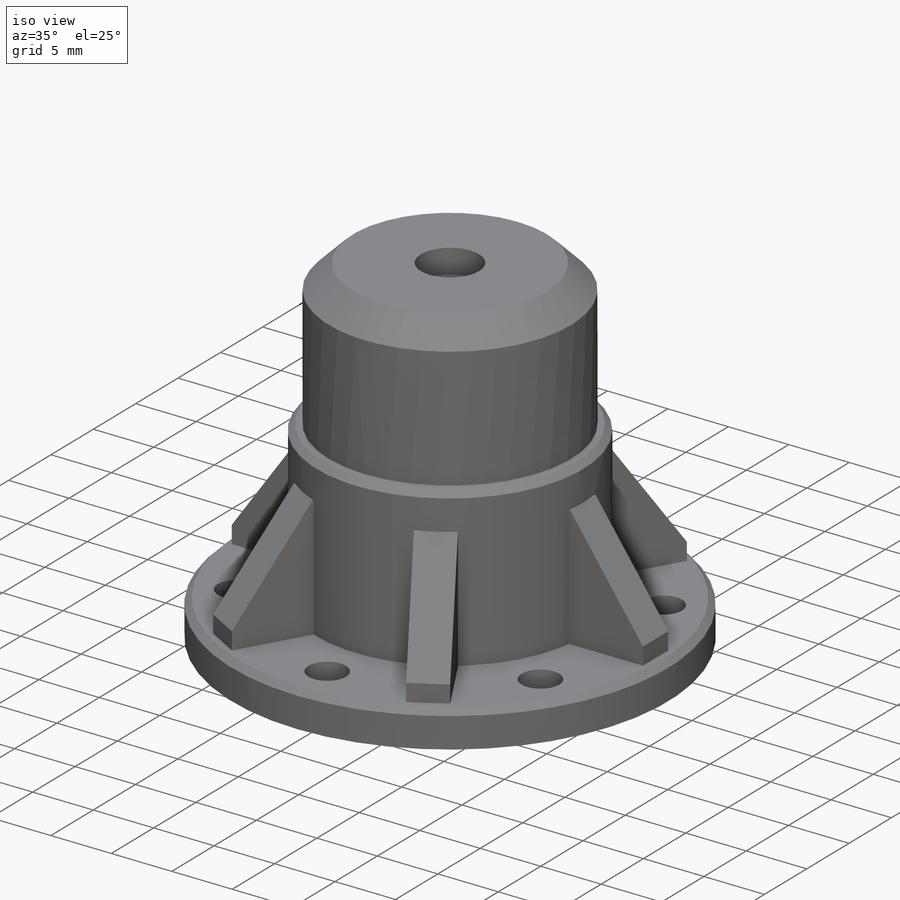
[diagram: iso view]
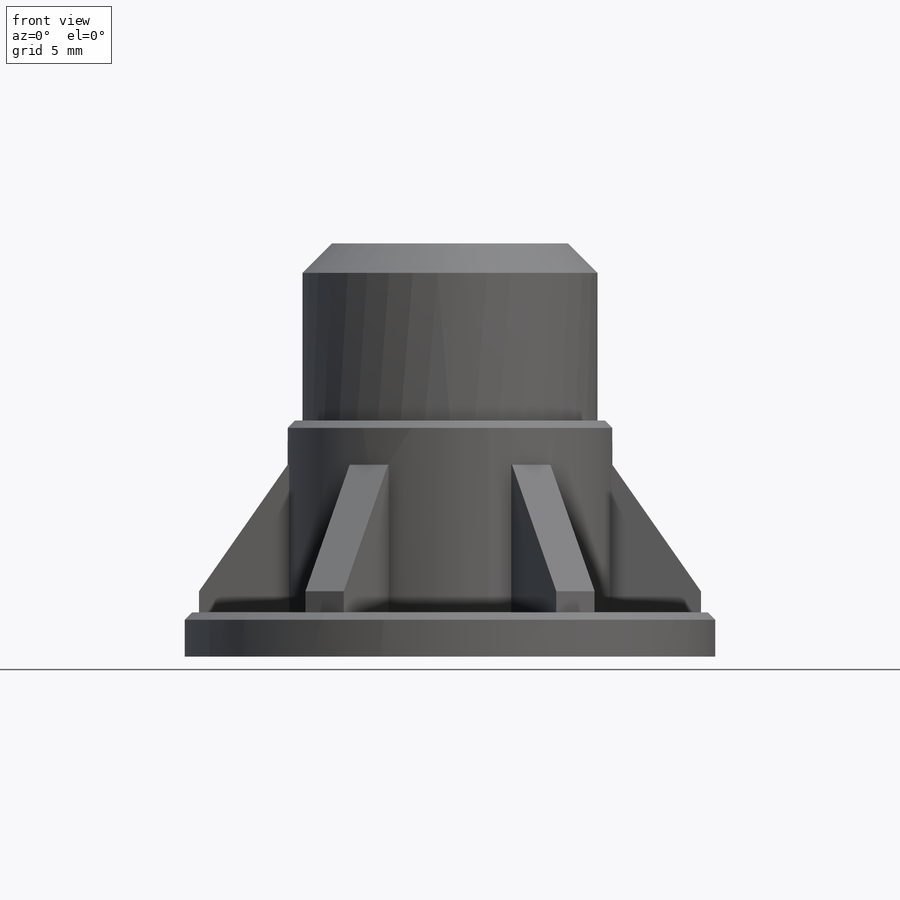
[diagram: front view]
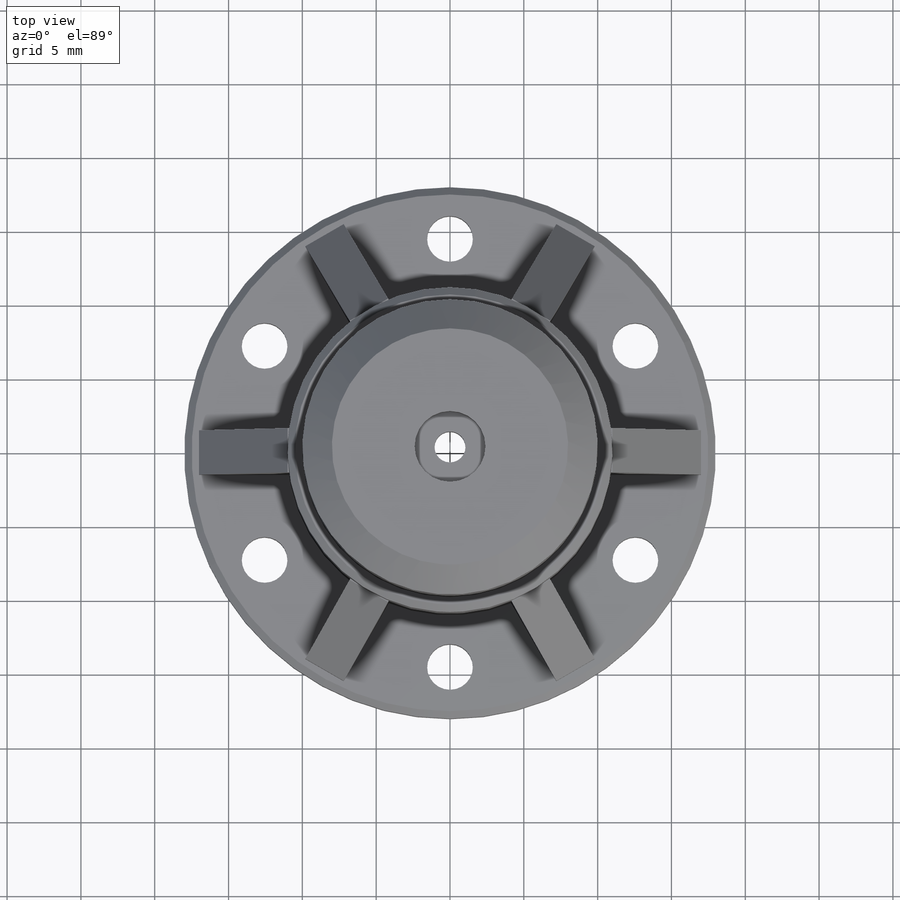
[diagram: top view]
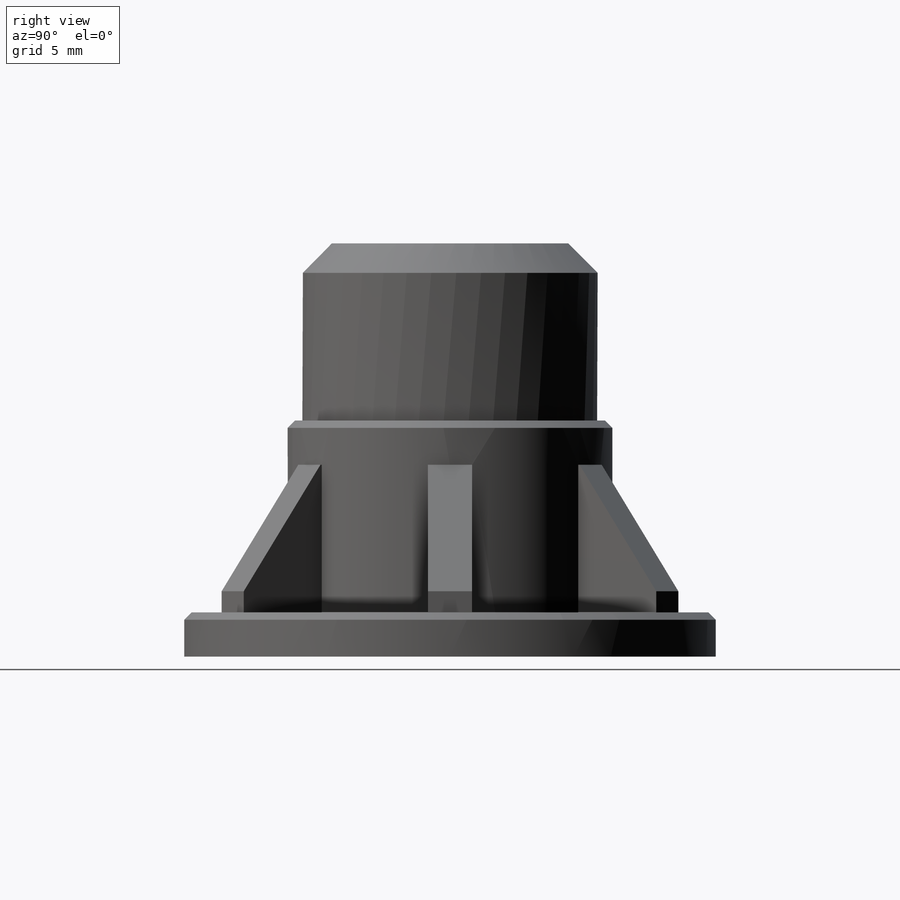
[diagram: right view]
SOLIDWORKS PART (.sldprt)
format: sldprt  version: not decoded by parser v0  size: 404,992 bytes
history: native  units: mm
features: sketch x12, extrude x5, chamfer x4, cut_extrude x3, material x1, hole x1, plane x1, pattern_circular x1, cut_revolve x1 (+13 scaffold rows collapsed)
feature tree (42):
  scaffold x13  (default folders/planes/origin — collapsed)
  material  "Material <not specified>"
  sketch  "Sketch1"  dims[D1=16.0mm D2=10.0mm]
  extrude  "Boss-Extrude1"  Depth=3mm
  sketch  "Sketch2"  dims[D1=3.0mm]
  extrude  "Boss-Extrude2"  Depth=22mm
  sketch  "Sketch3"  dims[c1.D1=19.55mm c2.D1=30.0deg c2.D2=~5.624096mm c3.D2=6.0]
  hole  "M (0.295) Diameter Hole1"  Diameter=3.1mm Depth=3mm
  sketch  "3DSketch1"
  sketch  "Sketch4"  dims[hole-wizard template sketch: 60 standard entries collapsed; hole parameters kept: c18.Thru Hole Depth=3.0mm]
  plane  "Plane1"
  sketch  "Sketch5"  dims[c1.D1=1.0mm c1.D2=1.0mm c1.D3=0.1mm c1.D4=0.1mm c1.D5=6.1mm c2.D1=1.0mm c2.D2=1.0mm c2.D3=0.1mm c2.D4=0.1mm c2.D5=12.0mm c3.D1=10.0mm c3.D2=1.0mm c3.D3=0.5mm c3.D4=0.5mm c3.D5=6.5mm]
  extrude  "Boss-Extrude3"  Depth=3mm
  pattern_circular  "CirPattern1"  Count=6 Angle=60deg
  chamfer  "Chamfer2"  Distance=0.5mm Angle=45deg
  sketch  "Sketch6"  dims[D1=22.0mm]
  extrude  "Boss-Extrude4"  Depth=3mm
  sketch  "Sketch8"  dims[D1=0.0mm]
  extrude  "Boss-Extrude5"  Depth=2mm
  chamfer  "Chamfer3"  Distance=6mm Angle=45deg
  sketch  "Sketch7"  dims[D1=4.8mm]
  cut_extrude  "Cut-Extrude1"  Depth=2mm
  sketch  "Sketch9"  dims[D1=2.1mm]
  cut_extrude  "Cut-Extrude2"  [1 undecoded]
  sketch  "Sketch10"  dims[D1=1.0mm]
  cut_extrude  "Cut-Extrude3"  Depth=12mm
  chamfer  "Chamfer4"  Distance=0.5mm Angle=45deg
  sketch  "Sketch11"  dims[D2=~8.91959mm D1=0.0mm]
  cut_revolve  "Cut-Revolve1"  Angle=360deg
  chamfer  "Chamfer5"  Distance=2mm Angle=60deg
decode coverage: 25 of 27 modeling features carry decoded parameters
note: ~ marks probable driven/reference dimensions
note: 1 parameter value undecoded
note: suppression state not decoded; provenance and decode notes live in map.json
